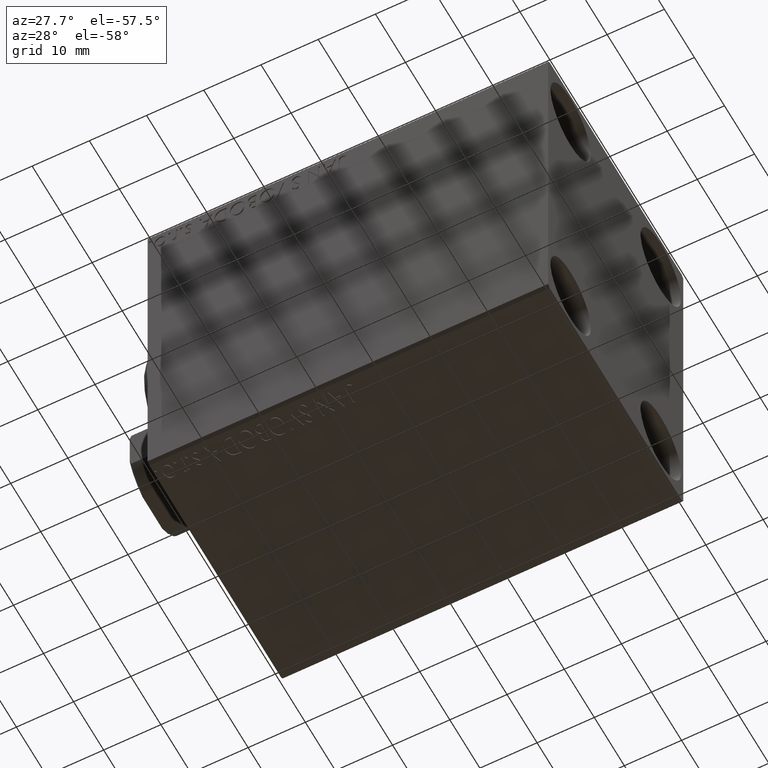
[diagram: clean part render]
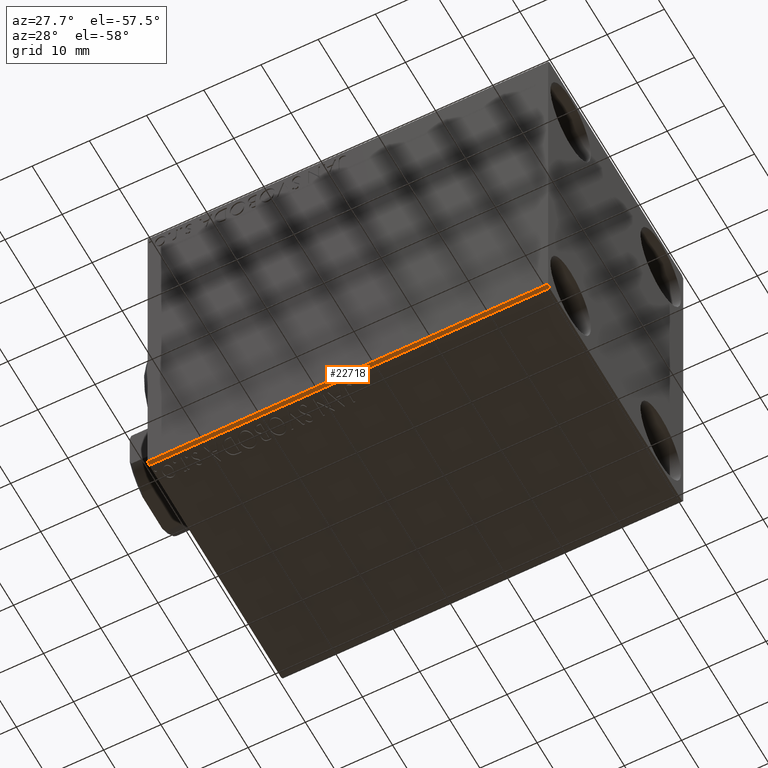
[diagram: same view with one face highlighted and labeled with its STEP entity id]
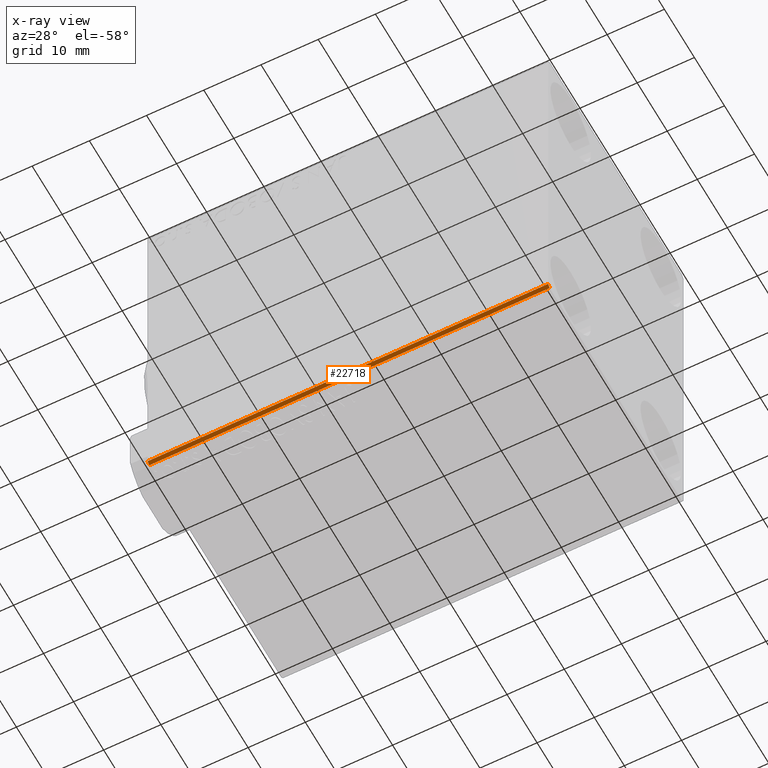
[diagram: x-ray of the same camera — body ghosted, the highlighted face saturated]
A machine part, auxiliary view. The second image highlights one B-rep face of the part: STEP entity #22718.
The next image is the same camera in x-ray: the body ghosted, the highlighted face saturated — about 0% of this face is hidden behind the body in this view.
In plain terms, the highlighted planar face has unit normal (0, 0.7071, 0.7071).
Its self-contained STEP definition (entity closure, byte-faithful):
#1521 = DIRECTION ( 'NONE',  ( 0.000000000000000000, 0.7071067811865573427, 0.7071067811865378028 ) ) ;
#2824 = DIRECTION ( 'NONE',  ( -1.000000000000000000, 0.000000000000000000, 0.000000000000000000 ) ) ;
#2940 = VECTOR ( 'NONE', #23692, 1000.000000000000000 ) ;
#3751 = CARTESIAN_POINT ( 'NONE',  ( 0.000000000000000000, -22.00000000000002132, -32.50000000000000711 ) ) ;
#4951 = VECTOR ( 'NONE', #31884, 1000.000000000000000 ) ;
#7099 = EDGE_CURVE ( 'NONE', #7401, #36739, #30948, .T. ) ;
#7401 = VERTEX_POINT ( 'NONE', #3751 ) ;
#7800 = DIRECTION ( 'NONE',  ( -0.000000000000000000, -0.7071067811865378028, 0.7071067811865573427 ) ) ;
#8608 = VECTOR ( 'NONE', #7800, 1000.000000000000000 ) ;
#9011 = EDGE_CURVE ( 'NONE', #22396, #7401, #43545, .T. ) ;
#9680 = CARTESIAN_POINT ( 'NONE',  ( 70.00000000000000000, -22.50000000000000711, -32.00000000000000711 ) ) ;
#9751 = EDGE_LOOP ( 'NONE', ( #16812, #42992, #37071, #15289 ) ) ;
#10340 = CARTESIAN_POINT ( 'NONE',  ( 0.000000000000000000, -22.50000000000000711, -32.00000000000000711 ) ) ;
#11549 = FACE_OUTER_BOUND ( 'NONE', #9751, .T. ) ;
#12456 = AXIS2_PLACEMENT_3D ( 'NONE', #31990, #1521, #28022 ) ;
#14461 = PLANE ( 'NONE',  #12456 ) ;
#14775 = LINE ( 'NONE', #25672, #4951 ) ;
#15289 = ORIENTED_EDGE ( 'NONE', *, *, #9011, .F. ) ;
#15919 = LINE ( 'NONE', #9680, #2940 ) ;
#16812 = ORIENTED_EDGE ( 'NONE', *, *, #36791, .F. ) ;
#17157 = CARTESIAN_POINT ( 'NONE',  ( 0.000000000000000000, -22.00000000000002132, -32.50000000000000711 ) ) ;
#17288 = VERTEX_POINT ( 'NONE', #40328 ) ;
#22396 = VERTEX_POINT ( 'NONE', #43385 ) ;
#22718 = ADVANCED_FACE ( 'NONE', ( #11549 ), #14461, .F. ) ;
#22871 = VECTOR ( 'NONE', #2824, 1000.000000000000000 ) ;
#23692 = DIRECTION ( 'NONE',  ( 1.000000000000000000, 0.000000000000000000, 0.000000000000000000 ) ) ;
#25672 = CARTESIAN_POINT ( 'NONE',  ( 70.00000000000000000, -27.25000000000032330, -27.24999999999957012 ) ) ;
#28022 = DIRECTION ( 'NONE',  ( -1.000000000000000000, -0.000000000000000000, 0.000000000000000000 ) ) ;
#29977 = CARTESIAN_POINT ( 'NONE',  ( 70.00000000000000000, -22.00000000000002132, -32.50000000000000711 ) ) ;
#30948 = LINE ( 'NONE', #17157, #8608 ) ;
#31884 = DIRECTION ( 'NONE',  ( -0.000000000000000000, 0.7071067811865378028, -0.7071067811865573427 ) ) ;
#31990 = CARTESIAN_POINT ( 'NONE',  ( 70.00000000000000000, -22.00000000000002132, -32.50000000000000711 ) ) ;
#36739 = VERTEX_POINT ( 'NONE', #10340 ) ;
#36791 = EDGE_CURVE ( 'NONE', #17288, #22396, #14775, .T. ) ;
#37071 = ORIENTED_EDGE ( 'NONE', *, *, #7099, .F. ) ;
#40328 = CARTESIAN_POINT ( 'NONE',  ( 70.00000000000000000, -22.50000000000000711, -32.00000000000000711 ) ) ;
#42190 = EDGE_CURVE ( 'NONE', #36739, #17288, #15919, .T. ) ;
#42992 = ORIENTED_EDGE ( 'NONE', *, *, #42190, .F. ) ;
#43385 = CARTESIAN_POINT ( 'NONE',  ( 70.00000000000000000, -22.00000000000002132, -32.50000000000000711 ) ) ;
#43545 = LINE ( 'NONE', #29977, #22871 ) ;